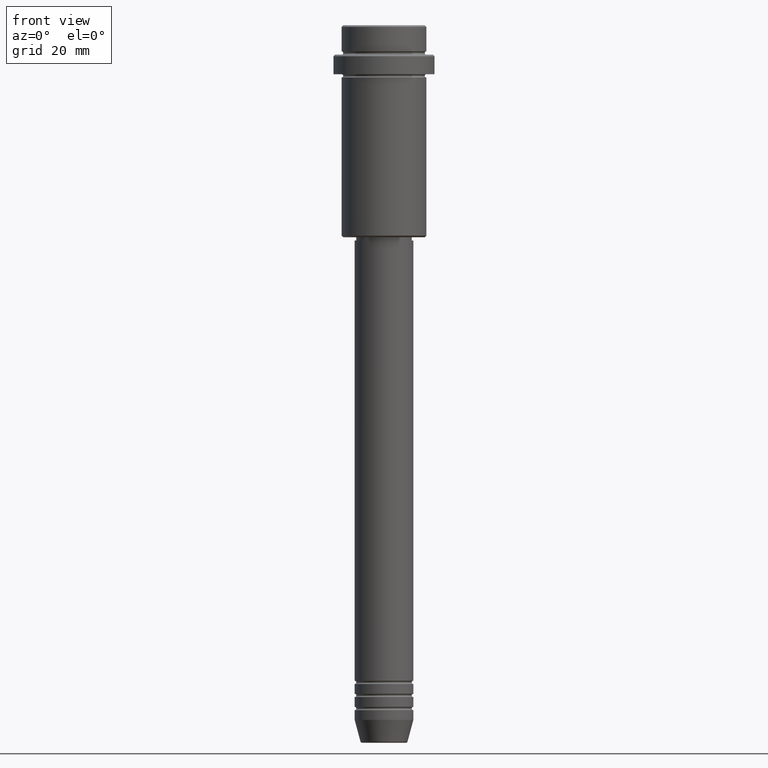
[diagram: clean part render]
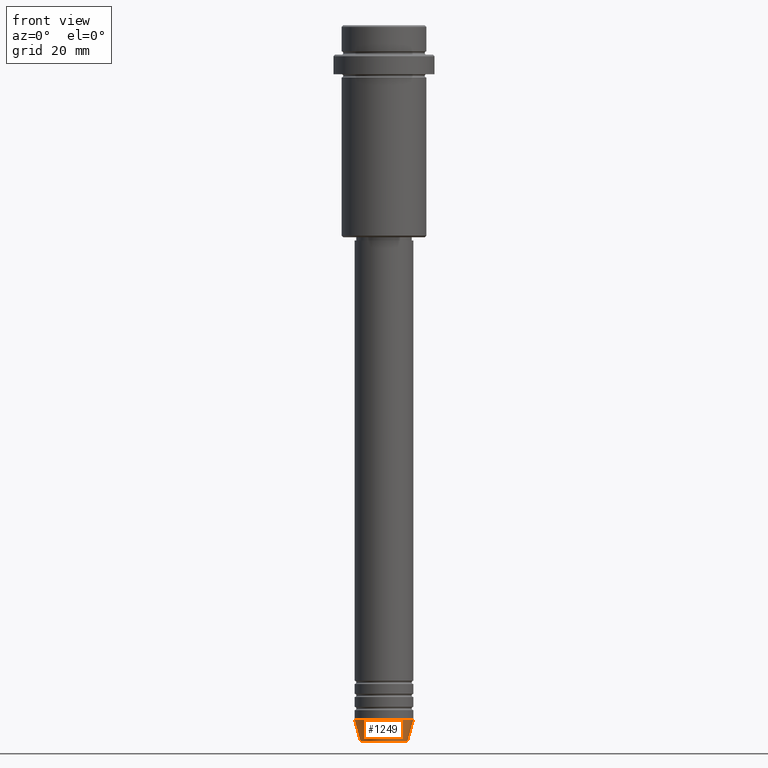
[diagram: same view with one face highlighted and labeled with its STEP entity id]
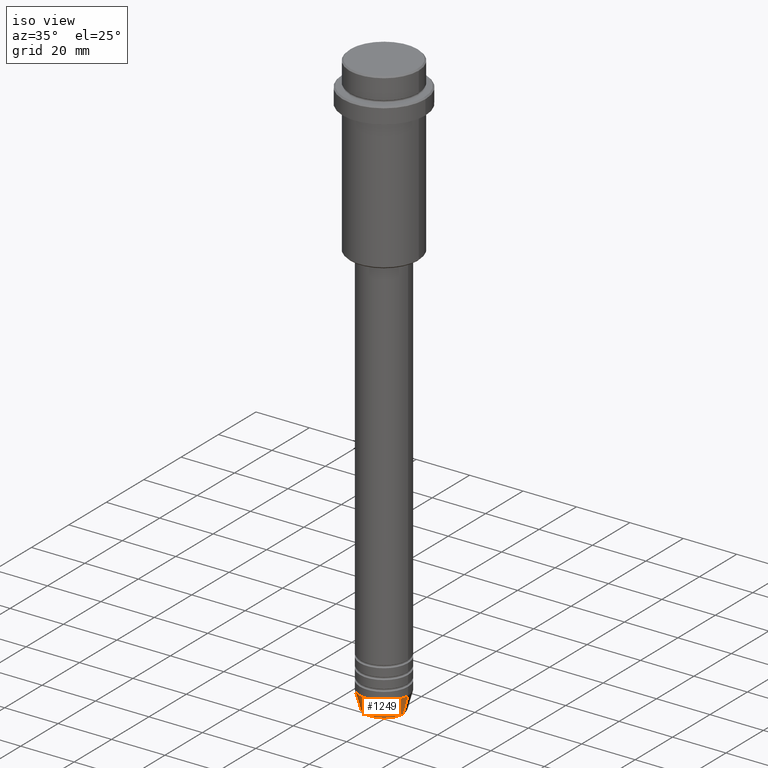
[diagram: same view with one face highlighted and labeled with its STEP entity id]
A machine part, front view. The second image highlights one B-rep face of the part: STEP entity #1249.
A second angle (iso view) of the same face is appended — the face is thin or edge-on in the first view.
In plain terms, the highlighted conical surface has half-angle 15 deg.
Its self-contained STEP definition (entity closure, byte-faithful):
#26 = CARTESIAN_POINT ( 'NONE',  ( 9.000000000000000000, 0.000000000000000000, -212.9999999999999716 ) ) ;
#39 = FACE_OUTER_BOUND ( 'NONE', #724, .T. ) ;
#140 = VERTEX_POINT ( 'NONE', #853 ) ;
#143 = VECTOR ( 'NONE', #370, 1000.000000000000000 ) ;
#147 = CIRCLE ( 'NONE', #988, 7.223655072137188604 ) ;
#233 = DIRECTION ( 'NONE',  ( 1.000000000000000000, 0.000000000000000000, 0.000000000000000000 ) ) ;
#326 = CONICAL_SURFACE ( 'NONE', #1128, 9.000000000000000000, 0.2617993877991500740 ) ;
#356 = CARTESIAN_POINT ( 'NONE',  ( 9.000000000000000000, 0.000000000000000000, -212.9999999999999716 ) ) ;
#370 = DIRECTION ( 'NONE',  ( 0.2588190451025213501, 0.000000000000000000, 0.9659258262890680902 ) ) ;
#496 = ORIENTED_EDGE ( 'NONE', *, *, #607, .F. ) ;
#573 = DIRECTION ( 'NONE',  ( -0.000000000000000000, -0.000000000000000000, 1.000000000000000000 ) ) ;
#587 = DIRECTION ( 'NONE',  ( -0.000000000000000000, -0.000000000000000000, 1.000000000000000000 ) ) ;
#607 = EDGE_CURVE ( 'NONE', #1219, #1399, #1217, .T. ) ;
#667 = DIRECTION ( 'NONE',  ( -0.2588190451025213501, 3.169619151431772337E-17, 0.9659258262890680902 ) ) ;
#673 = LINE ( 'NONE', #26, #143 ) ;
#691 = DIRECTION ( 'NONE',  ( 1.000000000000000000, 0.000000000000000000, 0.000000000000000000 ) ) ;
#724 = EDGE_LOOP ( 'NONE', ( #496, #1245, #963, #1231 ) ) ;
#733 = CIRCLE ( 'NONE', #1026, 9.000000000000000000 ) ;
#771 = EDGE_CURVE ( 'NONE', #140, #1206, #673, .T. ) ;
#788 = DIRECTION ( 'NONE',  ( 1.000000000000000000, 0.000000000000000000, 0.000000000000000000 ) ) ;
#808 = CARTESIAN_POINT ( 'NONE',  ( 0.000000000000000000, 0.000000000000000000, -219.6294095225512422 ) ) ;
#813 = CARTESIAN_POINT ( 'NONE',  ( -9.000000000000000000, 1.102182119232617714E-15, -212.9999999999999716 ) ) ;
#853 = CARTESIAN_POINT ( 'NONE',  ( 7.223655072137188604, 0.000000000000000000, -219.6294095225512422 ) ) ;
#909 = CARTESIAN_POINT ( 'NONE',  ( 0.000000000000000000, 0.000000000000000000, -212.9999999999999716 ) ) ;
#912 = CARTESIAN_POINT ( 'NONE',  ( -7.223655072137189492, 9.934123627281765110E-16, -219.6294095225512422 ) ) ;
#963 = ORIENTED_EDGE ( 'NONE', *, *, #771, .T. ) ;
#988 = AXIS2_PLACEMENT_3D ( 'NONE', #808, #573, #233 ) ;
#1010 = CARTESIAN_POINT ( 'NONE',  ( 0.000000000000000000, 0.000000000000000000, -212.9999999999999716 ) ) ;
#1026 = AXIS2_PLACEMENT_3D ( 'NONE', #1010, #587, #691 ) ;
#1128 = AXIS2_PLACEMENT_3D ( 'NONE', #909, #1223, #788 ) ;
#1145 = VECTOR ( 'NONE', #667, 1000.000000000000000 ) ;
#1206 = VERTEX_POINT ( 'NONE', #356 ) ;
#1212 = EDGE_CURVE ( 'NONE', #1399, #1206, #733, .T. ) ;
#1217 = LINE ( 'NONE', #1417, #1145 ) ;
#1219 = VERTEX_POINT ( 'NONE', #912 ) ;
#1223 = DIRECTION ( 'NONE',  ( -0.000000000000000000, -0.000000000000000000, 1.000000000000000000 ) ) ;
#1231 = ORIENTED_EDGE ( 'NONE', *, *, #1212, .F. ) ;
#1245 = ORIENTED_EDGE ( 'NONE', *, *, #1293, .T. ) ;
#1249 = ADVANCED_FACE ( 'NONE', ( #39 ), #326, .T. ) ;
#1293 = EDGE_CURVE ( 'NONE', #1219, #140, #147, .T. ) ;
#1399 = VERTEX_POINT ( 'NONE', #813 ) ;
#1417 = CARTESIAN_POINT ( 'NONE',  ( -9.000000000000000000, 1.102182119232617714E-15, -212.9999999999999716 ) ) ;